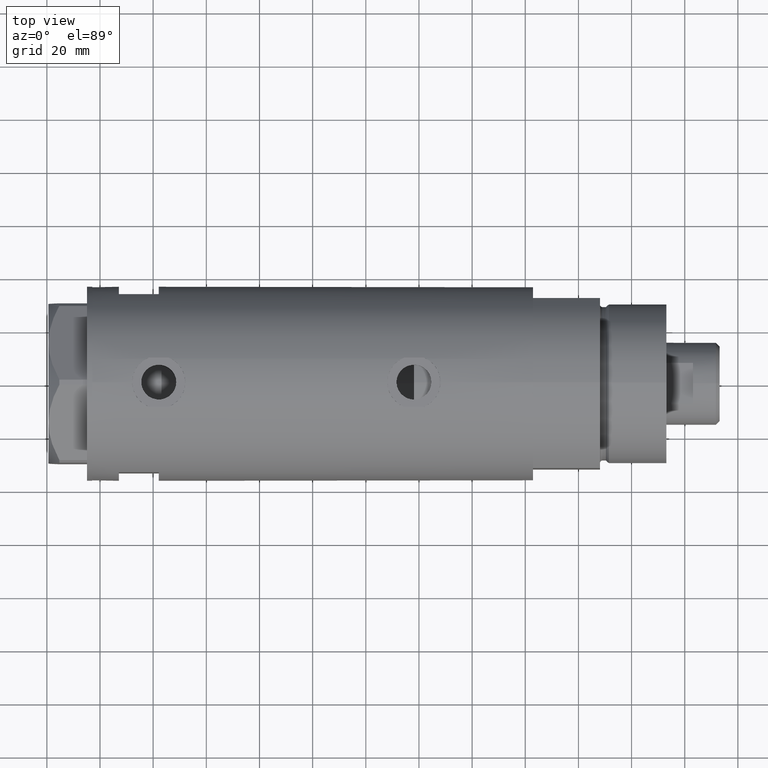
[diagram: clean part render]
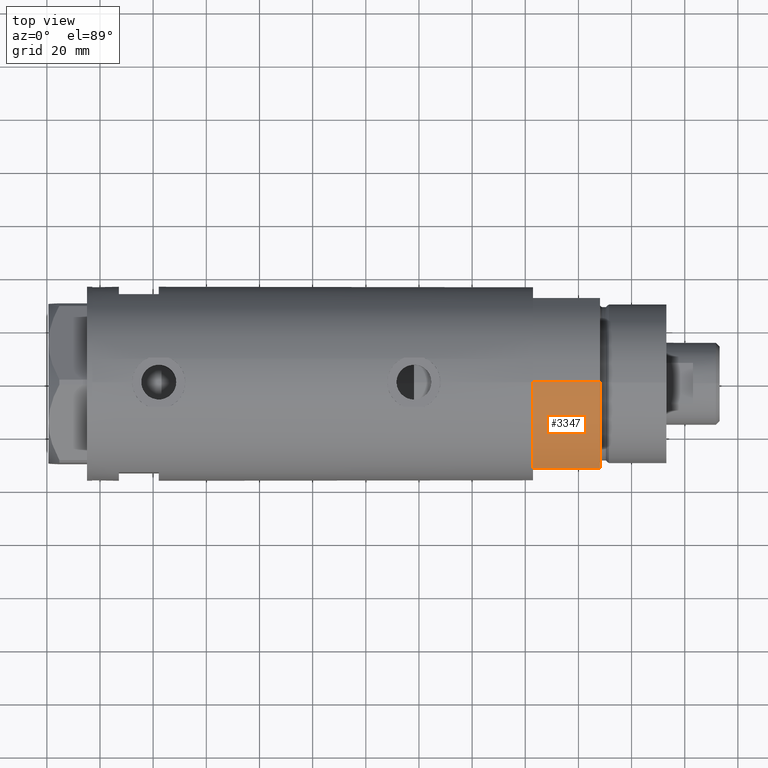
[diagram: same view with one face highlighted and labeled with its STEP entity id]
A machine part, top view. The second image highlights one B-rep face of the part: STEP entity #3347.
In plain terms, the highlighted cylindrical surface (partial cylindrical patch) has radius 36.5 mm, axis along (-1, -0, 0).
Its self-contained STEP definition (entity closure, byte-faithful):
#16 = CARTESIAN_POINT ( 'NONE',  ( -36.50000000000000000, 0.000000000000000000, 25.19999999999999929 ) ) ;
#36 = CIRCLE ( 'NONE', #409, 36.50000000000000000 ) ;
#48 = DIRECTION ( 'NONE',  ( 0.000000000000000000, 0.000000000000000000, 1.000000000000000000 ) ) ;
#98 = EDGE_CURVE ( 'NONE', #1738, #1203, #3530, .T. ) ;
#159 = ORIENTED_EDGE ( 'NONE', *, *, #4447, .T. ) ;
#281 = VERTEX_POINT ( 'NONE', #3828 ) ;
#322 = DIRECTION ( 'NONE',  ( -0.000000000000000000, -0.000000000000000000, -1.000000000000000000 ) ) ;
#409 = AXIS2_PLACEMENT_3D ( 'NONE', #1975, #1305, #2689 ) ;
#430 = DIRECTION ( 'NONE',  ( -0.000000000000000000, -0.000000000000000000, 1.000000000000000000 ) ) ;
#876 = VERTEX_POINT ( 'NONE', #924 ) ;
#924 = CARTESIAN_POINT ( 'NONE',  ( -36.50000000000000000, 0.000000000000000000, 25.19999999999999929 ) ) ;
#926 = CARTESIAN_POINT ( 'NONE',  ( -17.55704986607943496, -32.00000000000000000, 0.000000000000000000 ) ) ;
#939 = CARTESIAN_POINT ( 'NONE',  ( -17.55704986607943496, -32.00000000000000000, 25.19999999999999929 ) ) ;
#1050 = CIRCLE ( 'NONE', #1559, 36.50000000000000000 ) ;
#1203 = VERTEX_POINT ( 'NONE', #939 ) ;
#1305 = DIRECTION ( 'NONE',  ( 0.000000000000000000, 0.000000000000000000, 1.000000000000000000 ) ) ;
#1404 = FACE_OUTER_BOUND ( 'NONE', #1503, .T. ) ;
#1503 = EDGE_LOOP ( 'NONE', ( #1810, #159, #3908, #3267 ) ) ;
#1559 = AXIS2_PLACEMENT_3D ( 'NONE', #1729, #48, #3520 ) ;
#1729 = CARTESIAN_POINT ( 'NONE',  ( 0.000000000000000000, 0.000000000000000000, 25.19999999999999929 ) ) ;
#1738 = VERTEX_POINT ( 'NONE', #926 ) ;
#1810 = ORIENTED_EDGE ( 'NONE', *, *, #2894, .F. ) ;
#1975 = CARTESIAN_POINT ( 'NONE',  ( 0.000000000000000000, 0.000000000000000000, 0.000000000000000000 ) ) ;
#2112 = CARTESIAN_POINT ( 'NONE',  ( 0.000000000000000000, 0.000000000000000000, 25.19999999999999929 ) ) ;
#2208 = VECTOR ( 'NONE', #430, 1000.000000000000000 ) ;
#2292 = AXIS2_PLACEMENT_3D ( 'NONE', #2112, #2838, #3424 ) ;
#2689 = DIRECTION ( 'NONE',  ( 1.000000000000000000, 0.000000000000000000, 0.000000000000000000 ) ) ;
#2806 = CARTESIAN_POINT ( 'NONE',  ( -17.55704986607943141, -32.00000000000000000, 0.000000000000000000 ) ) ;
#2815 = CYLINDRICAL_SURFACE ( 'NONE', #2292, 36.50000000000000000 ) ;
#2838 = DIRECTION ( 'NONE',  ( -0.000000000000000000, -0.000000000000000000, -1.000000000000000000 ) ) ;
#2894 = EDGE_CURVE ( 'NONE', #876, #1203, #1050, .T. ) ;
#3020 = VECTOR ( 'NONE', #322, 1000.000000000000000 ) ;
#3252 = EDGE_CURVE ( 'NONE', #281, #1738, #36, .T. ) ;
#3267 = ORIENTED_EDGE ( 'NONE', *, *, #98, .T. ) ;
#3347 = ADVANCED_FACE ( 'NONE', ( #1404 ), #2815, .T. ) ;
#3424 = DIRECTION ( 'NONE',  ( -1.000000000000000000, 0.000000000000000000, 0.000000000000000000 ) ) ;
#3492 = LINE ( 'NONE', #16, #3020 ) ;
#3520 = DIRECTION ( 'NONE',  ( 1.000000000000000000, 0.000000000000000000, 0.000000000000000000 ) ) ;
#3530 = LINE ( 'NONE', #2806, #2208 ) ;
#3828 = CARTESIAN_POINT ( 'NONE',  ( -36.50000000000000000, 0.000000000000000000, 0.000000000000000000 ) ) ;
#3908 = ORIENTED_EDGE ( 'NONE', *, *, #3252, .T. ) ;
#4447 = EDGE_CURVE ( 'NONE', #876, #281, #3492, .T. ) ;